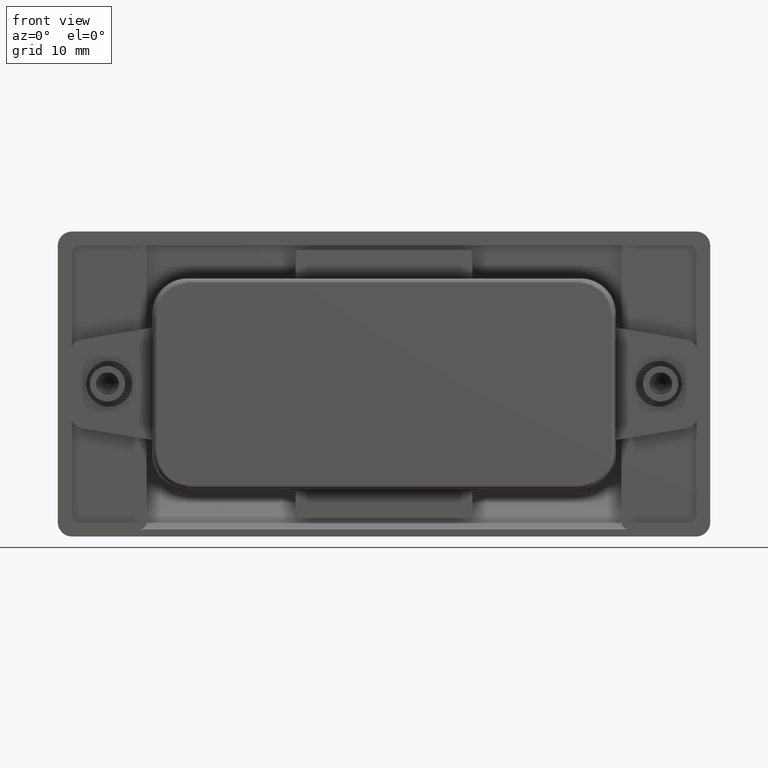
[diagram: clean part render]
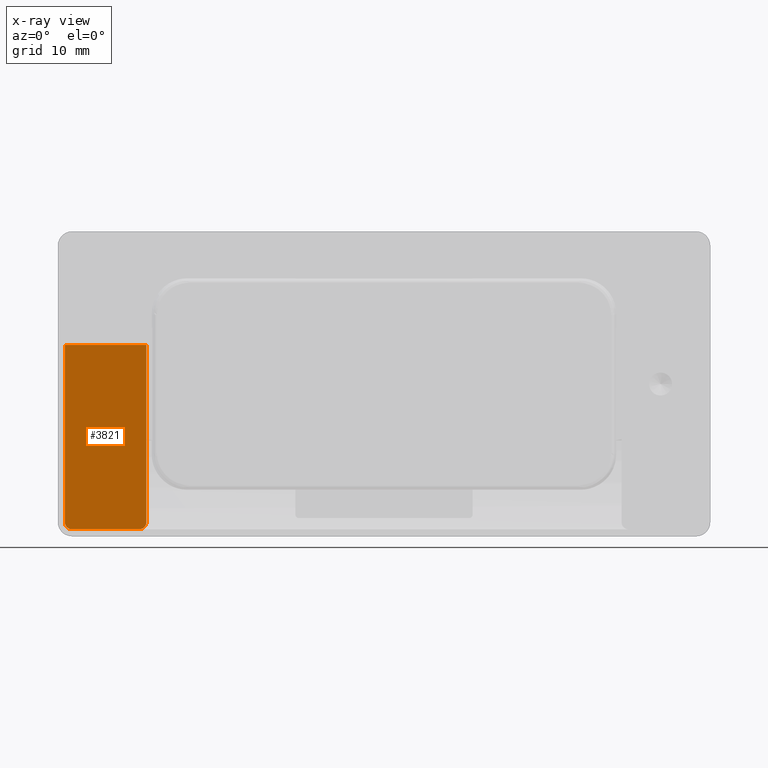
[diagram: x-ray — body ghosted, one internal face saturated and labeled with its STEP entity id]
A machine part, front view, then the same camera in x-ray: the body is ghosted and one INTERNAL B-rep face — a face not visible from any outside direction — is saturated and labeled: STEP entity #3821.
In plain terms, the highlighted planar face has unit normal (0, -1, 0).
Its self-contained STEP definition (entity closure, byte-faithful):
#52=LINE('',#6923,#333);
#60=LINE('',#6946,#341);
#61=LINE('',#6948,#342);
#62=LINE('',#6951,#343);
#333=VECTOR('',#4546,25.);
#341=VECTOR('',#4568,11.5);
#342=VECTOR('',#4569,9.5);
#343=VECTOR('',#4572,25.);
#608=PLANE('',#4085);
#839=FACE_OUTER_BOUND('',#1087,.T.);
#1087=EDGE_LOOP('',(#2684,#2685,#2686,#2687,#2688,#2689));
#1336=CIRCLE('',#4080,0.999999999999996);
#1340=CIRCLE('',#4086,1.);
#1664=VERTEX_POINT('',#6921);
#1665=VERTEX_POINT('',#6922);
#1667=VERTEX_POINT('',#6929);
#1673=VERTEX_POINT('',#6945);
#1674=VERTEX_POINT('',#6947);
#1675=VERTEX_POINT('',#6949);
#2052=EDGE_CURVE('',#1664,#1665,#52,.T.);
#2056=EDGE_CURVE('',#1667,#1664,#1336,.T.);
#2064=EDGE_CURVE('',#1665,#1673,#60,.T.);
#2065=EDGE_CURVE('',#1674,#1667,#61,.T.);
#2066=EDGE_CURVE('',#1675,#1674,#1340,.T.);
#2067=EDGE_CURVE('',#1673,#1675,#62,.T.);
#2684=ORIENTED_EDGE('',*,*,#2064,.F.);
#2685=ORIENTED_EDGE('',*,*,#2052,.F.);
#2686=ORIENTED_EDGE('',*,*,#2056,.F.);
#2687=ORIENTED_EDGE('',*,*,#2065,.F.);
#2688=ORIENTED_EDGE('',*,*,#2066,.F.);
#2689=ORIENTED_EDGE('',*,*,#2067,.F.);
#3821=ADVANCED_FACE('',(#839),#608,.F.);
#4080=AXIS2_PLACEMENT_3D('',#6930,#4552,#4553);
#4085=AXIS2_PLACEMENT_3D('',#6944,#4566,#4567);
#4086=AXIS2_PLACEMENT_3D('',#6950,#4570,#4571);
#4546=DIRECTION('',(-1.70803542250024E-16,0.,1.));
#4552=DIRECTION('center_axis',(0.,-1.,0.));
#4553=DIRECTION('ref_axis',(0.,0.,-1.));
#4566=DIRECTION('center_axis',(0.,-1.,0.));
#4567=DIRECTION('ref_axis',(0.,0.,-1.));
#4568=DIRECTION('',(-1.,0.,0.));
#4569=DIRECTION('',(1.,0.,0.));
#4570=DIRECTION('center_axis',(0.,-1.,0.));
#4571=DIRECTION('ref_axis',(-0.707106781186547,0.,-0.707106781186548));
#4572=DIRECTION('',(0.,0.,-1.));
#6921=CARTESIAN_POINT('',(-33.5,3.5,-19.5));
#6922=CARTESIAN_POINT('',(-33.5,3.5,5.5));
#6923=CARTESIAN_POINT('',(-33.5,3.5,-19.5));
#6929=CARTESIAN_POINT('',(-34.5,3.5,-20.5));
#6930=CARTESIAN_POINT('Origin',(-34.5,3.5,-19.5));
#6944=CARTESIAN_POINT('Origin',(-39.25,3.5,-5.64867683281256E-15));
#6945=CARTESIAN_POINT('',(-45.,3.5,5.5));
#6946=CARTESIAN_POINT('',(0.,3.5,5.5));
#6947=CARTESIAN_POINT('',(-44.,3.5,-20.5));
#6948=CARTESIAN_POINT('',(-19.625,3.5,-20.5));
#6949=CARTESIAN_POINT('',(-45.,3.5,-19.5));
#6950=CARTESIAN_POINT('Origin',(-44.,3.5,-19.5));
#6951=CARTESIAN_POINT('',(-45.,3.5,-2.82433841640628E-15));